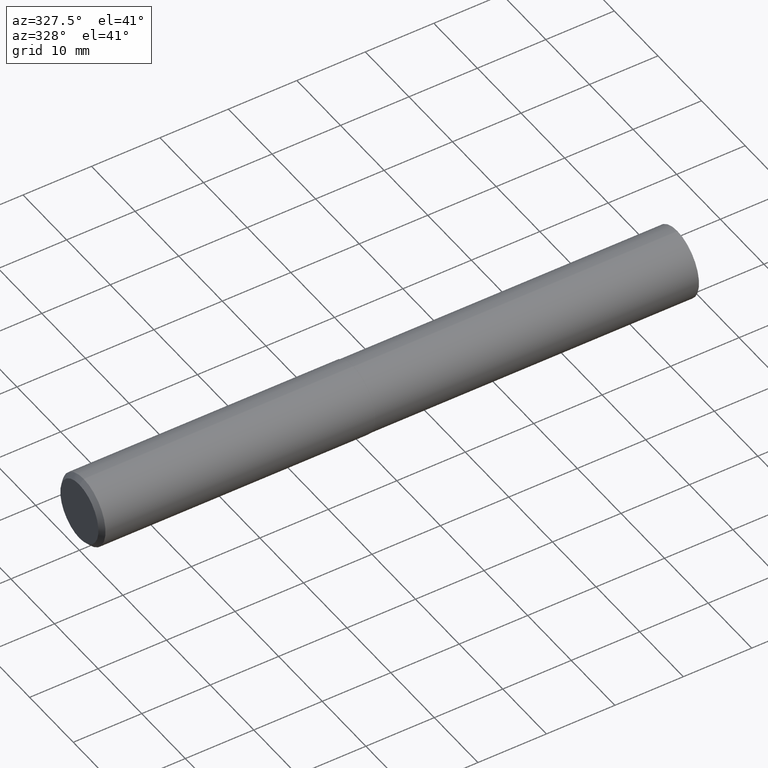
[diagram: clean part render]
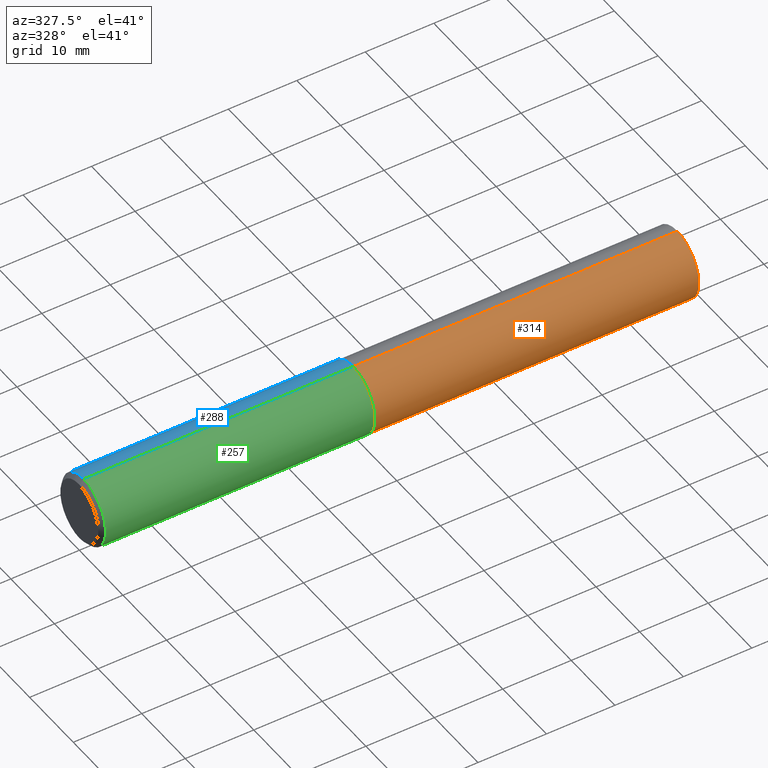
[diagram: same view with three faces highlighted in distinct colors, each labeled with its STEP entity id]
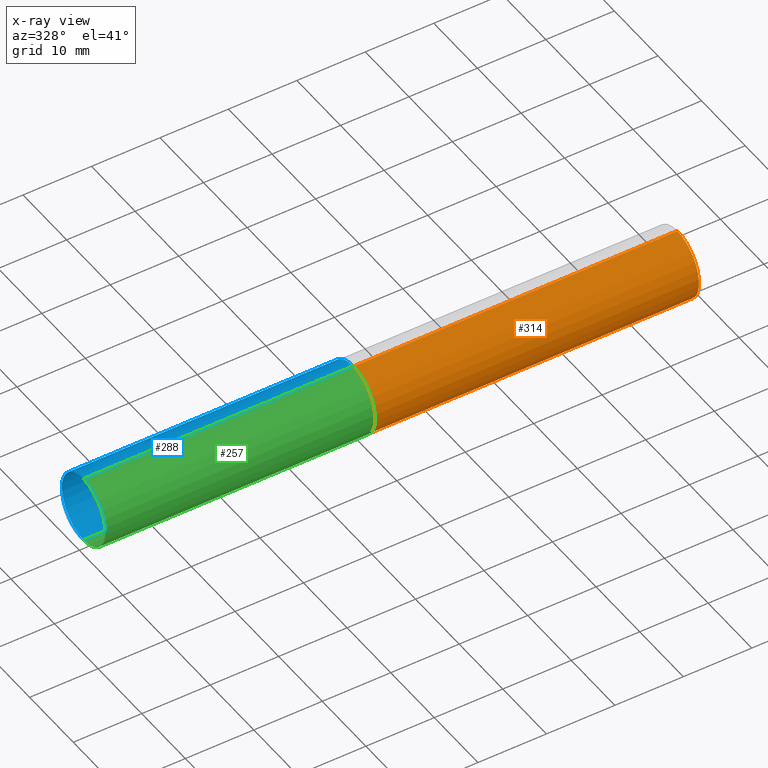
[diagram: x-ray of the same camera — body ghosted, the three highlighted faces saturated]
A machine part, auxiliary view with three faces highlighted in distinct colors.
The next image is the same camera in x-ray (body ghosted, the three faces saturated) — at least one of them is partly hidden behind the body in this view.
Their STEP definitions:

[orange] entity #314 — the highlighted cylindrical surface (partial cylindrical patch) has radius 4.9403 mm, axis along (1, -0, -0).
#8 = VERTEX_POINT ( 'NONE', #329 ) ;
#21 = AXIS2_PLACEMENT_3D ( 'NONE', #269, #125, #213 ) ;
#35 = ORIENTED_EDGE ( 'NONE', *, *, #187, .T. ) ;
#44 = DIRECTION ( 'NONE',  ( 0.000000000000000000, 0.000000000000000000, -1.000000000000000000 ) ) ;
#45 = EDGE_CURVE ( 'NONE', #8, #89, #69, .T. ) ;
#56 = DIRECTION ( 'NONE',  ( 0.000000000000000000, 0.000000000000000000, -1.000000000000000000 ) ) ;
#60 = VECTOR ( 'NONE', #164, 39.37007874015748143 ) ;
#69 = CIRCLE ( 'NONE', #21, 0.1945000000000004503 ) ;
#89 = VERTEX_POINT ( 'NONE', #339 ) ;
#96 = VERTEX_POINT ( 'NONE', #193 ) ;
#102 = EDGE_CURVE ( 'NONE', #96, #89, #249, .T. ) ;
#103 = CARTESIAN_POINT ( 'NONE',  ( 1.577153543307086903, 0.000000000000000000, 0.000000000000000000 ) ) ;
#105 = CARTESIAN_POINT ( 'NONE',  ( -0.03808593750000075634, 0.000000000000000000, -0.1945000000000003115 ) ) ;
#125 = DIRECTION ( 'NONE',  ( 1.000000000000000000, -0.000000000000000000, -0.000000000000000000 ) ) ;
#127 = ORIENTED_EDGE ( 'NONE', *, *, #102, .T. ) ;
#137 = DIRECTION ( 'NONE',  ( 1.000000000000000000, -0.000000000000000000, -0.000000000000000000 ) ) ;
#146 = CARTESIAN_POINT ( 'NONE',  ( 1.577153543307086903, 2.381938024341605034E-17, 0.1945000000000001728 ) ) ;
#147 = ORIENTED_EDGE ( 'NONE', *, *, #278, .F. ) ;
#153 = VECTOR ( 'NONE', #175, 39.37007874015748143 ) ;
#164 = DIRECTION ( 'NONE',  ( 1.000000000000000000, -0.000000000000000000, -0.000000000000000000 ) ) ;
#171 = AXIS2_PLACEMENT_3D ( 'NONE', #103, #137, #44 ) ;
#175 = DIRECTION ( 'NONE',  ( 1.000000000000000000, -0.000000000000000000, -0.000000000000000000 ) ) ;
#186 = AXIS2_PLACEMENT_3D ( 'NONE', #372, #345, #56 ) ;
#187 = EDGE_CURVE ( 'NONE', #356, #96, #203, .T. ) ;
#193 = CARTESIAN_POINT ( 'NONE',  ( 1.577153543307086903, 0.000000000000000000, -0.1945000000000001728 ) ) ;
#203 = CIRCLE ( 'NONE', #171, 0.1945000000000001728 ) ;
#206 = CARTESIAN_POINT ( 'NONE',  ( -0.03808593750000075634, 2.381938024341605650E-17, 0.1945000000000003115 ) ) ;
#207 = CYLINDRICAL_SURFACE ( 'NONE', #186, 0.1945000000000003115 ) ;
#213 = DIRECTION ( 'NONE',  ( 0.000000000000000000, 0.000000000000000000, -1.000000000000000000 ) ) ;
#249 = LINE ( 'NONE', #105, #60 ) ;
#268 = ORIENTED_EDGE ( 'NONE', *, *, #45, .F. ) ;
#269 = CARTESIAN_POINT ( 'NONE',  ( 3.439514276408898397, 0.000000000000000000, 0.000000000000000000 ) ) ;
#278 = EDGE_CURVE ( 'NONE', #356, #8, #350, .T. ) ;
#314 = ADVANCED_FACE ( 'NONE', ( #315 ), #207, .T. ) ;
#315 = FACE_OUTER_BOUND ( 'NONE', #371, .T. ) ;
#329 = CARTESIAN_POINT ( 'NONE',  ( 3.439514276408898397, 0.000000000000000000, 0.1945000000000004781 ) ) ;
#339 = CARTESIAN_POINT ( 'NONE',  ( 3.439514276408898397, 2.381938024341608115E-17, -0.1945000000000004781 ) ) ;
#345 = DIRECTION ( 'NONE',  ( 1.000000000000000000, -0.000000000000000000, -0.000000000000000000 ) ) ;
#350 = LINE ( 'NONE', #206, #153 ) ;
#356 = VERTEX_POINT ( 'NONE', #146 ) ;
#371 = EDGE_LOOP ( 'NONE', ( #147, #35, #127, #268 ) ) ;
#372 = CARTESIAN_POINT ( 'NONE',  ( -0.03808593750000075634, 0.000000000000000000, 0.000000000000000000 ) ) ;

[blue] entity #288 — the highlighted cylindrical surface (partial cylindrical patch) has radius 5 mm, axis along (1, -0, -0).
#1 = EDGE_CURVE ( 'NONE', #321, #27, #358, .T. ) ;
#2 = ORIENTED_EDGE ( 'NONE', *, *, #1, .F. ) ;
#3 = AXIS2_PLACEMENT_3D ( 'NONE', #169, #348, #143 ) ;
#4 = ORIENTED_EDGE ( 'NONE', *, *, #150, .T. ) ;
#16 = LINE ( 'NONE', #17, #334 ) ;
#17 = CARTESIAN_POINT ( 'NONE',  ( -0.03808593750000075634, 2.410722045565656686E-17, 0.1968503937007874682 ) ) ;
#20 = CARTESIAN_POINT ( 'NONE',  ( 0.02500000000000000139, 0.000000000000000000, -0.1968503937007873850 ) ) ;
#27 = VERTEX_POINT ( 'NONE', #73 ) ;
#47 = DIRECTION ( 'NONE',  ( 1.000000000000000000, -0.000000000000000000, -0.000000000000000000 ) ) ;
#54 = CARTESIAN_POINT ( 'NONE',  ( 1.574803149606299302, 0.000000000000000000, 0.1968503937007875793 ) ) ;
#55 = CIRCLE ( 'NONE', #267, 0.1968503937007875793 ) ;
#73 = CARTESIAN_POINT ( 'NONE',  ( 1.574803149606299302, 2.410722045565658227E-17, -0.1968503937007875793 ) ) ;
#75 = DIRECTION ( 'NONE',  ( 0.000000000000000000, 0.000000000000000000, -1.000000000000000000 ) ) ;
#81 = CARTESIAN_POINT ( 'NONE',  ( 0.02500000000000000139, 0.000000000000000000, 0.000000000000000000 ) ) ;
#88 = FACE_OUTER_BOUND ( 'NONE', #349, .T. ) ;
#110 = VECTOR ( 'NONE', #185, 39.37007874015748143 ) ;
#121 = AXIS2_PLACEMENT_3D ( 'NONE', #81, #247, #75 ) ;
#124 = ORIENTED_EDGE ( 'NONE', *, *, #157, .T. ) ;
#133 = DIRECTION ( 'NONE',  ( 1.000000000000000000, -0.000000000000000000, -0.000000000000000000 ) ) ;
#143 = DIRECTION ( 'NONE',  ( 0.000000000000000000, 0.000000000000000000, -1.000000000000000000 ) ) ;
#150 = EDGE_CURVE ( 'NONE', #321, #217, #287, .T. ) ;
#152 = ORIENTED_EDGE ( 'NONE', *, *, #194, .F. ) ;
#157 = EDGE_CURVE ( 'NONE', #217, #291, #16, .T. ) ;
#165 = CARTESIAN_POINT ( 'NONE',  ( 1.574803149606299302, 0.000000000000000000, 0.000000000000000000 ) ) ;
#168 = CARTESIAN_POINT ( 'NONE',  ( 0.02500000000000000139, 2.410722045565656070E-17, 0.1968503937007873850 ) ) ;
#169 = CARTESIAN_POINT ( 'NONE',  ( -0.03808593750000075634, 0.000000000000000000, 0.000000000000000000 ) ) ;
#185 = DIRECTION ( 'NONE',  ( 1.000000000000000000, -0.000000000000000000, -0.000000000000000000 ) ) ;
#194 = EDGE_CURVE ( 'NONE', #27, #291, #55, .T. ) ;
#202 = CYLINDRICAL_SURFACE ( 'NONE', #3, 0.1968503937007874682 ) ;
#217 = VERTEX_POINT ( 'NONE', #168 ) ;
#247 = DIRECTION ( 'NONE',  ( 1.000000000000000000, -0.000000000000000000, -0.000000000000000000 ) ) ;
#267 = AXIS2_PLACEMENT_3D ( 'NONE', #165, #133, #368 ) ;
#287 = CIRCLE ( 'NONE', #121, 0.1968503937007873850 ) ;
#288 = ADVANCED_FACE ( 'NONE', ( #88 ), #202, .T. ) ;
#291 = VERTEX_POINT ( 'NONE', #54 ) ;
#302 = CARTESIAN_POINT ( 'NONE',  ( -0.03808593750000075634, 0.000000000000000000, -0.1968503937007874682 ) ) ;
#321 = VERTEX_POINT ( 'NONE', #20 ) ;
#334 = VECTOR ( 'NONE', #47, 39.37007874015748143 ) ;
#348 = DIRECTION ( 'NONE',  ( 1.000000000000000000, -0.000000000000000000, -0.000000000000000000 ) ) ;
#349 = EDGE_LOOP ( 'NONE', ( #4, #124, #152, #2 ) ) ;
#358 = LINE ( 'NONE', #302, #110 ) ;
#368 = DIRECTION ( 'NONE',  ( 0.000000000000000000, 0.000000000000000000, -1.000000000000000000 ) ) ;

[green] entity #257 — the highlighted cylindrical surface (partial cylindrical patch) has radius 5 mm, axis along (1, -0, -0).
#1 = EDGE_CURVE ( 'NONE', #321, #27, #358, .T. ) ;
#16 = LINE ( 'NONE', #17, #334 ) ;
#17 = CARTESIAN_POINT ( 'NONE',  ( -0.03808593750000075634, 2.410722045565656686E-17, 0.1968503937007874682 ) ) ;
#18 = CARTESIAN_POINT ( 'NONE',  ( -0.03808593750000075634, 0.000000000000000000, 0.000000000000000000 ) ) ;
#20 = CARTESIAN_POINT ( 'NONE',  ( 0.02500000000000000139, 0.000000000000000000, -0.1968503937007873850 ) ) ;
#22 = AXIS2_PLACEMENT_3D ( 'NONE', #18, #196, #310 ) ;
#26 = EDGE_CURVE ( 'NONE', #291, #27, #311, .T. ) ;
#27 = VERTEX_POINT ( 'NONE', #73 ) ;
#47 = DIRECTION ( 'NONE',  ( 1.000000000000000000, -0.000000000000000000, -0.000000000000000000 ) ) ;
#54 = CARTESIAN_POINT ( 'NONE',  ( 1.574803149606299302, 0.000000000000000000, 0.1968503937007875793 ) ) ;
#72 = CARTESIAN_POINT ( 'NONE',  ( 1.574803149606299302, 0.000000000000000000, 0.000000000000000000 ) ) ;
#73 = CARTESIAN_POINT ( 'NONE',  ( 1.574803149606299302, 2.410722045565658227E-17, -0.1968503937007875793 ) ) ;
#77 = AXIS2_PLACEMENT_3D ( 'NONE', #72, #266, #100 ) ;
#100 = DIRECTION ( 'NONE',  ( 0.000000000000000000, 0.000000000000000000, -1.000000000000000000 ) ) ;
#108 = CYLINDRICAL_SURFACE ( 'NONE', #22, 0.1968503937007874682 ) ;
#109 = CARTESIAN_POINT ( 'NONE',  ( 0.02500000000000000139, 0.000000000000000000, 0.000000000000000000 ) ) ;
#110 = VECTOR ( 'NONE', #185, 39.37007874015748143 ) ;
#123 = CIRCLE ( 'NONE', #325, 0.1968503937007873850 ) ;
#136 = FACE_OUTER_BOUND ( 'NONE', #296, .T. ) ;
#157 = EDGE_CURVE ( 'NONE', #217, #291, #16, .T. ) ;
#168 = CARTESIAN_POINT ( 'NONE',  ( 0.02500000000000000139, 2.410722045565656070E-17, 0.1968503937007873850 ) ) ;
#184 = ORIENTED_EDGE ( 'NONE', *, *, #157, .F. ) ;
#185 = DIRECTION ( 'NONE',  ( 1.000000000000000000, -0.000000000000000000, -0.000000000000000000 ) ) ;
#196 = DIRECTION ( 'NONE',  ( 1.000000000000000000, -0.000000000000000000, -0.000000000000000000 ) ) ;
#217 = VERTEX_POINT ( 'NONE', #168 ) ;
#226 = DIRECTION ( 'NONE',  ( 1.000000000000000000, -0.000000000000000000, -0.000000000000000000 ) ) ;
#257 = ADVANCED_FACE ( 'NONE', ( #136 ), #108, .T. ) ;
#262 = EDGE_CURVE ( 'NONE', #217, #321, #123, .T. ) ;
#266 = DIRECTION ( 'NONE',  ( 1.000000000000000000, -0.000000000000000000, -0.000000000000000000 ) ) ;
#286 = ORIENTED_EDGE ( 'NONE', *, *, #26, .F. ) ;
#291 = VERTEX_POINT ( 'NONE', #54 ) ;
#296 = EDGE_LOOP ( 'NONE', ( #184, #353, #297, #286 ) ) ;
#297 = ORIENTED_EDGE ( 'NONE', *, *, #1, .T. ) ;
#302 = CARTESIAN_POINT ( 'NONE',  ( -0.03808593750000075634, 0.000000000000000000, -0.1968503937007874682 ) ) ;
#310 = DIRECTION ( 'NONE',  ( 0.000000000000000000, 0.000000000000000000, -1.000000000000000000 ) ) ;
#311 = CIRCLE ( 'NONE', #77, 0.1968503937007875793 ) ;
#321 = VERTEX_POINT ( 'NONE', #20 ) ;
#325 = AXIS2_PLACEMENT_3D ( 'NONE', #109, #226, #340 ) ;
#334 = VECTOR ( 'NONE', #47, 39.37007874015748143 ) ;
#340 = DIRECTION ( 'NONE',  ( 0.000000000000000000, 0.000000000000000000, -1.000000000000000000 ) ) ;
#353 = ORIENTED_EDGE ( 'NONE', *, *, #262, .T. ) ;
#358 = LINE ( 'NONE', #302, #110 ) ;